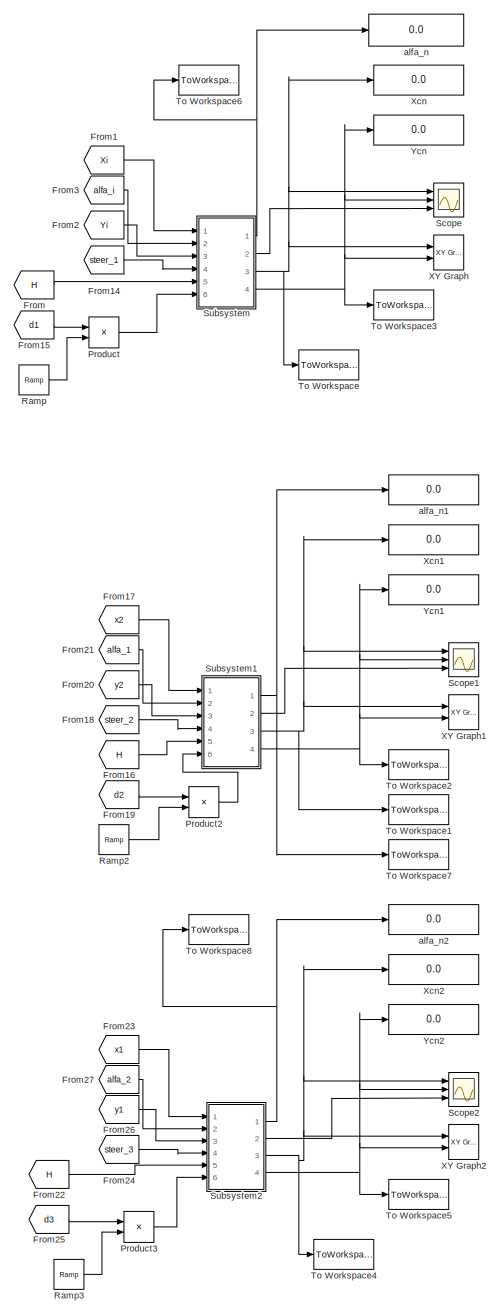
[diagram: root canvas - part 1/2, right side, full height]
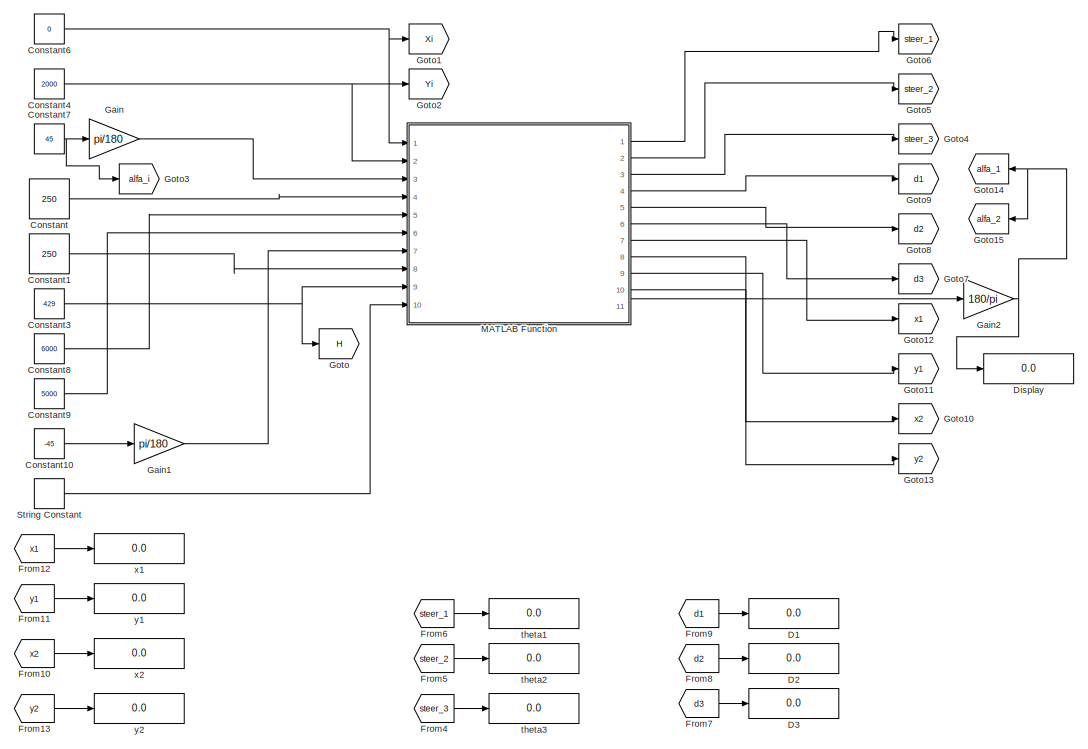
[diagram: root canvas - part 2/2, central region]
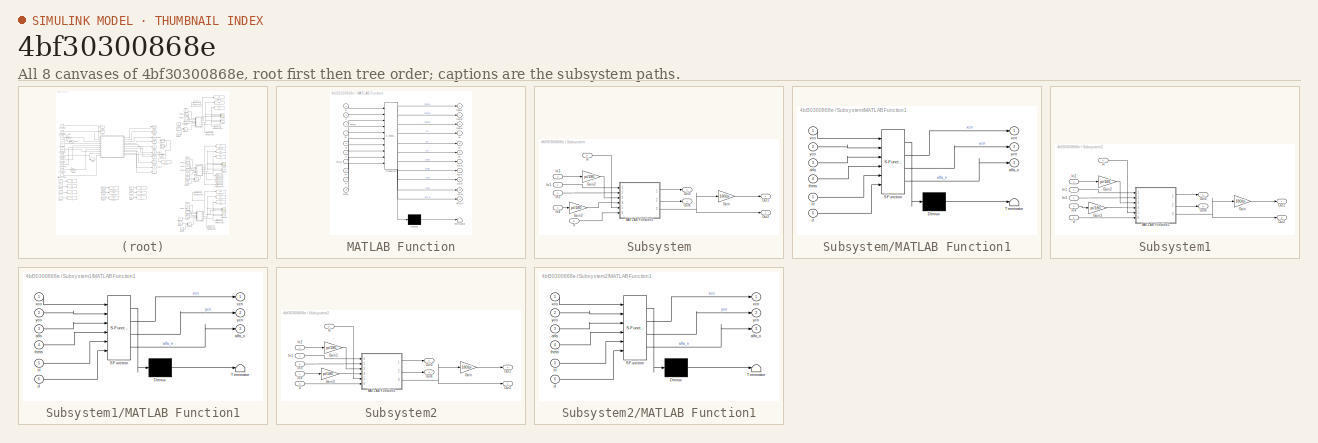
[diagram: thumbnail index - all 8 canvases of the model, root first then tree order]
MODEL slx_4bf30300868e
KIND model
CONFIG AbsTol = auto
CONFIG EnableMultiTasking = off
CONFIG FixedStep = 0.01
CONFIG MaxStep = auto
CONFIG MinStep = auto
CONFIG RelTol = 1e-3
CONFIG SampleTimeConstraint = Unconstrained
CONFIG SolverName = VariableStepAuto
CONFIG StartTime = 0.0
CONFIG StopTime = 1
BLOCK [Constant] Constant
  Value = 250
BLOCK [Constant] Constant1
  Value = 250
BLOCK [Constant] Constant10
  Value = -45
BLOCK [Constant] Constant3
  Value = 429
BLOCK [Constant] Constant4
  Value = 2000
BLOCK [Constant] Constant6
  Value = 0
BLOCK [Constant] Constant7
  Value = 45
BLOCK [Constant] Constant8
  Value = 6000
BLOCK [Constant] Constant9
  Value = 5000
BLOCK [Display] D1
  Decimation = 1
  Ports = [1]
BLOCK [Display] D2
  Decimation = 1
  Ports = [1]
BLOCK [Display] D3
  Decimation = 1
  Ports = [1]
BLOCK [Display] Display
  Decimation = 1
  Format = long
  Ports = [1]
BLOCK [From] From
  GotoTag = H
BLOCK [From] From1
  GotoTag = Xi
BLOCK [From] From10
  GotoTag = x2
BLOCK [From] From11
  GotoTag = y1
BLOCK [From] From12
  GotoTag = x1
BLOCK [From] From13
  GotoTag = y2
BLOCK [From] From14
  GotoTag = steer_1
BLOCK [From] From15
  GotoTag = d1
BLOCK [From] From16
  GotoTag = H
BLOCK [From] From17
  GotoTag = x2
BLOCK [From] From18
  GotoTag = steer_2
BLOCK [From] From19
  GotoTag = d2
BLOCK [From] From2
  GotoTag = Yi
BLOCK [From] From20
  GotoTag = y2
BLOCK [From] From21
  GotoTag = alfa_1
BLOCK [From] From22
  GotoTag = H
BLOCK [From] From23
  GotoTag = x1
BLOCK [From] From24
  GotoTag = steer_3
BLOCK [From] From25
  GotoTag = d3
BLOCK [From] From26
  GotoTag = y1
BLOCK [From] From27
  GotoTag = alfa_2
BLOCK [From] From3
  GotoTag = alfa_i
BLOCK [From] From4
  GotoTag = steer_3
BLOCK [From] From5
  GotoTag = steer_2
BLOCK [From] From6
  GotoTag = steer_1
BLOCK [From] From7
  GotoTag = d3
BLOCK [From] From8
  GotoTag = d2
BLOCK [From] From9
  GotoTag = d1
BLOCK [Gain] Gain
  Gain = pi/180
BLOCK [Gain] Gain1
  Gain = pi/180
BLOCK [Gain] Gain2
  Gain = 180/pi
BLOCK [Goto] Goto
  GotoTag = H
BLOCK [Goto] Goto1
  GotoTag = Xi
BLOCK [Goto] Goto10
  GotoTag = x2
BLOCK [Goto] Goto11
  GotoTag = y1
BLOCK [Goto] Goto12
  GotoTag = x1
BLOCK [Goto] Goto13
  GotoTag = y2
BLOCK [Goto] Goto14
  GotoTag = alfa_1
BLOCK [Goto] Goto15
  GotoTag = alfa_2
BLOCK [Goto] Goto2
  GotoTag = Yi
BLOCK [Goto] Goto3
  GotoTag = alfa_i
BLOCK [Goto] Goto4
  GotoTag = steer_3
BLOCK [Goto] Goto5
  GotoTag = steer_2
BLOCK [Goto] Goto6
  GotoTag = steer_1
BLOCK [Goto] Goto7
  GotoTag = d3
BLOCK [Goto] Goto8
  GotoTag = d2
BLOCK [Goto] Goto9
  GotoTag = d1
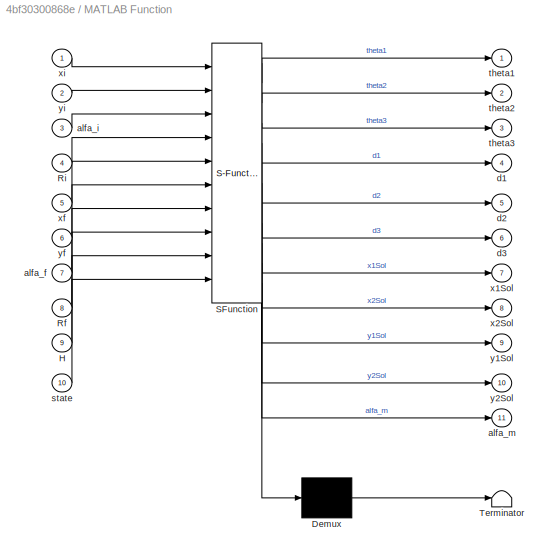
BLOCK [SubSystem] MATLAB Function
  ErrorFcn = Stateflow.Translate.translate
  PermitHierarchicalResolution = ExplicitOnly
  Ports = [10, 11]
  RequestExecContextInheritance = off
  SFBlockType = MATLAB Function
  TreatAsAtomicUnit = on
BLOCK [Demux] MATLAB Function/ Demux 
  Outputs = 1
  Ports = [1, 1]
BLOCK [S-Function] MATLAB Function/ SFunction 
  EnableBusSupport = on
  FunctionName = sf_sfun
  PortCounts = [10 12]
  Ports = [10, 12]
  SFcnIsStateOwnerBlock = off
  SFunctionDeploymentMode = off
  Tag = Stateflow S-Function 13
BLOCK [Terminator] MATLAB Function/ Terminator 
BLOCK [Inport] MATLAB Function/H
  Port = 9
BLOCK [Inport] MATLAB Function/Rf
  Port = 8
BLOCK [Inport] MATLAB Function/Ri
  Port = 4
BLOCK [Inport] MATLAB Function/alfa_f
  Port = 7
BLOCK [Inport] MATLAB Function/alfa_i
  Port = 3
BLOCK [Outport] MATLAB Function/alfa_m
  Port = 11
  VectorParamsAs1DForOutWhenUnconnected = off
BLOCK [Outport] MATLAB Function/d1
  Port = 4
  VectorParamsAs1DForOutWhenUnconnected = off
BLOCK [Outport] MATLAB Function/d2
  Port = 5
  VectorParamsAs1DForOutWhenUnconnected = off
BLOCK [Outport] MATLAB Function/d3
  Port = 6
  VectorParamsAs1DForOutWhenUnconnected = off
BLOCK [Inport] MATLAB Function/state
  Port = 10
BLOCK [Outport] MATLAB Function/theta1
  VectorParamsAs1DForOutWhenUnconnected = off
BLOCK [Outport] MATLAB Function/theta2
  Port = 2
  VectorParamsAs1DForOutWhenUnconnected = off
BLOCK [Outport] MATLAB Function/theta3
  Port = 3
  VectorParamsAs1DForOutWhenUnconnected = off
BLOCK [Outport] MATLAB Function/x1Sol
  Port = 7
  VectorParamsAs1DForOutWhenUnconnected = off
BLOCK [Outport] MATLAB Function/x2Sol
  Port = 8
  VectorParamsAs1DForOutWhenUnconnected = off
BLOCK [Inport] MATLAB Function/xf
  Port = 5
BLOCK [Inport] MATLAB Function/xi
BLOCK [Outport] MATLAB Function/y1Sol
  Port = 9
  VectorParamsAs1DForOutWhenUnconnected = off
BLOCK [Outport] MATLAB Function/y2Sol
  Port = 10
  VectorParamsAs1DForOutWhenUnconnected = off
BLOCK [Inport] MATLAB Function/yf
  Port = 6
BLOCK [Inport] MATLAB Function/yi
  Port = 2
BLOCK [Product] Product
  Ports = [2, 1]
BLOCK [Product] Product2
  Ports = [2, 1]
BLOCK [Product] Product3
  Ports = [2, 1]
BLOCK [Reference] Ramp  REF=simulink/Sources/Ramp
  Ports = [0, 1]
  SourceBlock = simulink/Sources/Ramp
  SourceProductBaseCode = SL
  SourceType = Ramp
BLOCK [Reference] Ramp2  REF=simulink/Sources/Ramp
  Ports = [0, 1]
  SourceBlock = simulink/Sources/Ramp
  SourceProductBaseCode = SL
  SourceType = Ramp
BLOCK [Reference] Ramp3  REF=simulink/Sources/Ramp
  Ports = [0, 1]
  SourceBlock = simulink/Sources/Ramp
  SourceProductBaseCode = SL
  SourceType = Ramp
BLOCK [Scope] Scope
  Floating = off
  NumInputPorts = 3
  Ports = [3]
  ScopeSpecificationString = Simulink.scopes.TimeScopeBlockCfg('CurrentConfiguration', extmgr.ConfigurationSet(extmgr.Configuration('Core','General UI',true),extmgr.Configuration('Core','Source UI',true),extmgr.Configuration('Sources','WiredSimulink',true),extmgr.Configuration('Visuals','Time Domain',true,'SerializedDisplays',{struct('MinYLimReal','-0.0000003','MaxYLimReal','0.0000029','YLabelReal','','MinYLimMag','0.0000000'...<+2746ch>
BLOCK [Scope] Scope1
  Floating = off
  NumInputPorts = 3
  Ports = [3]
  ScopeSpecificationString = Simulink.scopes.TimeScopeBlockCfg('CurrentConfiguration', extmgr.ConfigurationSet(extmgr.Configuration('Core','General UI',true),extmgr.Configuration('Core','Source UI',true),extmgr.Configuration('Sources','WiredSimulink',true,'DataLoggingVariableName','ScopeData1'),extmgr.Configuration('Visuals','Time Domain',true,'SerializedDisplays',{struct('MinYLimReal','-5911.68253','MaxYLimReal','656.85361',...<+2794ch>
BLOCK [Scope] Scope2
  Floating = off
  NumInputPorts = 3
  Ports = [3]
  ScopeSpecificationString = Simulink.scopes.TimeScopeBlockCfg('CurrentConfiguration', extmgr.ConfigurationSet(extmgr.Configuration('Core','General UI',true),extmgr.Configuration('Core','Source UI',true),extmgr.Configuration('Sources','WiredSimulink',true,'DataLoggingVariableName','ScopeData2'),extmgr.Configuration('Visuals','Time Domain',true,'SerializedDisplays',{struct('MinYLimReal','-112.50441','MaxYLimReal','12.50049','Y...<+2799ch>
BLOCK [StringConstant] String Constant
  String = "F"
BLOCK [SubSystem] Subsystem
  Ports = [6, 4]
  RequestExecContextInheritance = off
BLOCK [Gain] Subsystem/Gain
  Gain = 180/pi
BLOCK [Gain] Subsystem/Gain2
  Gain = pi/180
BLOCK [Gain] Subsystem/Gain3
  Gain = pi/180
BLOCK [Inport] Subsystem/H
  Port = 5
BLOCK [Inport] Subsystem/In1
BLOCK [Inport] Subsystem/In2
  Port = 2
BLOCK [Inport] Subsystem/In3
  Port = 3
BLOCK [Inport] Subsystem/In4
  Port = 4
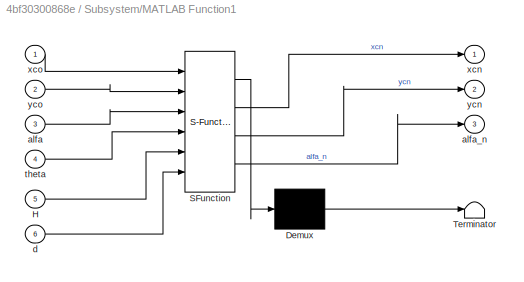
BLOCK [SubSystem] Subsystem/MATLAB Function1
  ErrorFcn = Stateflow.Translate.translate
  PermitHierarchicalResolution = ExplicitOnly
  Ports = [6, 3]
  RequestExecContextInheritance = off
  SFBlockType = MATLAB Function
  TreatAsAtomicUnit = on
BLOCK [Demux] Subsystem/MATLAB Function1/ Demux 
  Outputs = 1
  Ports = [1, 1]
BLOCK [S-Function] Subsystem/MATLAB Function1/ SFunction 
  EnableBusSupport = on
  FunctionName = sf_sfun
  PortCounts = [6 4]
  Ports = [6, 4]
  SFcnIsStateOwnerBlock = off
  SFunctionDeploymentMode = off
  Tag = Stateflow S-Function 1
BLOCK [Terminator] Subsystem/MATLAB Function1/ Terminator 
BLOCK [Inport] Subsystem/MATLAB Function1/H
  Port = 5
BLOCK [Inport] Subsystem/MATLAB Function1/alfa
  Port = 3
BLOCK [Outport] Subsystem/MATLAB Function1/alfa_n
  Port = 3
  VectorParamsAs1DForOutWhenUnconnected = off
BLOCK [Inport] Subsystem/MATLAB Function1/d
  Port = 6
BLOCK [Inport] Subsystem/MATLAB Function1/theta
  Port = 4
BLOCK [Outport] Subsystem/MATLAB Function1/xcn
  VectorParamsAs1DForOutWhenUnconnected = off
BLOCK [Inport] Subsystem/MATLAB Function1/xco
BLOCK [Outport] Subsystem/MATLAB Function1/ycn
  Port = 2
  VectorParamsAs1DForOutWhenUnconnected = off
BLOCK [Inport] Subsystem/MATLAB Function1/yco
  Port = 2
BLOCK [Outport] Subsystem/Out1
  VectorParamsAs1DForOutWhenUnconnected = off
BLOCK [Outport] Subsystem/Out2
  Port = 2
  VectorParamsAs1DForOutWhenUnconnected = off
BLOCK [Outport] Subsystem/Out3
  Port = 3
  VectorParamsAs1DForOutWhenUnconnected = off
BLOCK [Outport] Subsystem/Out4
  Port = 4
  VectorParamsAs1DForOutWhenUnconnected = off
BLOCK [Inport] Subsystem/d
  Port = 6
BLOCK [SubSystem] Subsystem1
  Ports = [6, 4]
  RequestExecContextInheritance = off
BLOCK [Gain] Subsystem1/Gain
  Gain = 180/pi
BLOCK [Gain] Subsystem1/Gain2
  Gain = pi/180
BLOCK [Gain] Subsystem1/Gain3
  Gain = pi/180
BLOCK [Inport] Subsystem1/H
  Port = 5
BLOCK [Inport] Subsystem1/In1
BLOCK [Inport] Subsystem1/In2
  Port = 2
BLOCK [Inport] Subsystem1/In3
  Port = 3
BLOCK [Inport] Subsystem1/In4
  Port = 4
BLOCK [SubSystem] Subsystem1/MATLAB Function1
  ErrorFcn = Stateflow.Translate.translate
  PermitHierarchicalResolution = ExplicitOnly
  Ports = [6, 3]
  RequestExecContextInheritance = off
  SFBlockType = MATLAB Function
  TreatAsAtomicUnit = on
BLOCK [Demux] Subsystem1/MATLAB Function1/ Demux 
  Outputs = 1
  Ports = [1, 1]
BLOCK [S-Function] Subsystem1/MATLAB Function1/ SFunction 
  EnableBusSupport = on
  FunctionName = sf_sfun
  PortCounts = [6 4]
  Ports = [6, 4]
  SFcnIsStateOwnerBlock = off
  SFunctionDeploymentMode = off
  Tag = Stateflow S-Function 2
BLOCK [Terminator] Subsystem1/MATLAB Function1/ Terminator 
BLOCK [Inport] Subsystem1/MATLAB Function1/H
  Port = 5
BLOCK [Inport] Subsystem1/MATLAB Function1/alfa
  Port = 3
BLOCK [Outport] Subsystem1/MATLAB Function1/alfa_n
  Port = 3
  VectorParamsAs1DForOutWhenUnconnected = off
BLOCK [Inport] Subsystem1/MATLAB Function1/d
  Port = 6
BLOCK [Inport] Subsystem1/MATLAB Function1/theta
  Port = 4
BLOCK [Outport] Subsystem1/MATLAB Function1/xcn
  VectorParamsAs1DForOutWhenUnconnected = off
BLOCK [Inport] Subsystem1/MATLAB Function1/xco
BLOCK [Outport] Subsystem1/MATLAB Function1/ycn
  Port = 2
  VectorParamsAs1DForOutWhenUnconnected = off
BLOCK [Inport] Subsystem1/MATLAB Function1/yco
  Port = 2
BLOCK [Outport] Subsystem1/Out1
  VectorParamsAs1DForOutWhenUnconnected = off
BLOCK [Outport] Subsystem1/Out2
  Port = 2
  VectorParamsAs1DForOutWhenUnconnected = off
BLOCK [Outport] Subsystem1/Out3
  Port = 3
  VectorParamsAs1DForOutWhenUnconnected = off
BLOCK [Outport] Subsystem1/Out4
  Port = 4
  VectorParamsAs1DForOutWhenUnconnected = off
BLOCK [Inport] Subsystem1/d
  Port = 6
BLOCK [SubSystem] Subsystem2
  Ports = [6, 4]
  RequestExecContextInheritance = off
BLOCK [Gain] Subsystem2/Gain
  Gain = 180/pi
BLOCK [Gain] Subsystem2/Gain2
  Gain = pi/180
BLOCK [Gain] Subsystem2/Gain3
  Gain = pi/180
BLOCK [Inport] Subsystem2/H
  Port = 5
BLOCK [Inport] Subsystem2/In1
BLOCK [Inport] Subsystem2/In2
  Port = 2
BLOCK [Inport] Subsystem2/In3
  Port = 3
BLOCK [Inport] Subsystem2/In4
  Port = 4
BLOCK [SubSystem] Subsystem2/MATLAB Function1
  ErrorFcn = Stateflow.Translate.translate
  PermitHierarchicalResolution = ExplicitOnly
  Ports = [6, 3]
  RequestExecContextInheritance = off
  SFBlockType = MATLAB Function
  TreatAsAtomicUnit = on
BLOCK [Demux] Subsystem2/MATLAB Function1/ Demux 
  Outputs = 1
  Ports = [1, 1]
BLOCK [S-Function] Subsystem2/MATLAB Function1/ SFunction 
  EnableBusSupport = on
  FunctionName = sf_sfun
  PortCounts = [6 4]
  Ports = [6, 4]
  SFcnIsStateOwnerBlock = off
  SFunctionDeploymentMode = off
  Tag = Stateflow S-Function 10
BLOCK [Terminator] Subsystem2/MATLAB Function1/ Terminator 
BLOCK [Inport] Subsystem2/MATLAB Function1/H
  Port = 5
BLOCK [Inport] Subsystem2/MATLAB Function1/alfa
  Port = 3
BLOCK [Outport] Subsystem2/MATLAB Function1/alfa_n
  Port = 3
  VectorParamsAs1DForOutWhenUnconnected = off
BLOCK [Inport] Subsystem2/MATLAB Function1/d
  Port = 6
BLOCK [Inport] Subsystem2/MATLAB Function1/theta
  Port = 4
BLOCK [Outport] Subsystem2/MATLAB Function1/xcn
  VectorParamsAs1DForOutWhenUnconnected = off
BLOCK [Inport] Subsystem2/MATLAB Function1/xco
BLOCK [Outport] Subsystem2/MATLAB Function1/ycn
  Port = 2
  VectorParamsAs1DForOutWhenUnconnected = off
BLOCK [Inport] Subsystem2/MATLAB Function1/yco
  Port = 2
BLOCK [Outport] Subsystem2/Out1
  VectorParamsAs1DForOutWhenUnconnected = off
BLOCK [Outport] Subsystem2/Out2
  Port = 2
  VectorParamsAs1DForOutWhenUnconnected = off
BLOCK [Outport] Subsystem2/Out3
  Port = 3
  VectorParamsAs1DForOutWhenUnconnected = off
BLOCK [Outport] Subsystem2/Out4
  Port = 4
  VectorParamsAs1DForOutWhenUnconnected = off
BLOCK [Inport] Subsystem2/d
  Port = 6
BLOCK [ToWorkspace] To Workspace
  Decimation = 2
  FixptAsFi = on
  MaxDataPoints = inf
  Ports = [1]
  SampleTime = 0.05
  VariableName = X1
BLOCK [ToWorkspace] To Workspace1
  Decimation = 2
  FixptAsFi = on
  MaxDataPoints = inf
  Ports = [1]
  SampleTime = 0.05
  VariableName = X2
BLOCK [ToWorkspace] To Workspace2
  Decimation = 2
  FixptAsFi = on
  MaxDataPoints = inf
  Ports = [1]
  SampleTime = 0.05
  VariableName = Y2
BLOCK [ToWorkspace] To Workspace3
  Decimation = 2
  FixptAsFi = on
  MaxDataPoints = inf
  Ports = [1]
  SampleTime = 0.05
  VariableName = Y1
BLOCK [ToWorkspace] To Workspace4
  Decimation = 2
  FixptAsFi = on
  MaxDataPoints = inf
  Ports = [1]
  SampleTime = 0.05
  VariableName = X3
BLOCK [ToWorkspace] To Workspace5
  Decimation = 2
  FixptAsFi = on
  MaxDataPoints = inf
  Ports = [1]
  SampleTime = 0.05
  VariableName = Y3
BLOCK [ToWorkspace] To Workspace6
  Decimation = 2
  FixptAsFi = on
  MaxDataPoints = inf
  Ports = [1]
  SampleTime = 0.05
  VariableName = alfa1
BLOCK [ToWorkspace] To Workspace7
  Decimation = 2
  FixptAsFi = on
  MaxDataPoints = inf
  Ports = [1]
  SampleTime = 0.05
  VariableName = alfa2
BLOCK [ToWorkspace] To Workspace8
  Decimation = 2
  FixptAsFi = on
  MaxDataPoints = inf
  Ports = [1]
  SampleTime = 0.05
  VariableName = alfa3
BLOCK [Reference] XY Graph  REF=simulink/Sinks/XY Graph
  Ports = [2]
  SourceBlock = simulink/Sinks/XY Graph
  SourceProductBaseCode = SL
  SourceType = XY scope.
BLOCK [Reference] XY Graph1  REF=simulink/Sinks/XY Graph
  Ports = [2]
  SourceBlock = simulink/Sinks/XY Graph
  SourceProductBaseCode = SL
  SourceType = XY scope.
BLOCK [Reference] XY Graph2  REF=simulink/Sinks/XY Graph
  Ports = [2]
  SourceBlock = simulink/Sinks/XY Graph
  SourceProductBaseCode = SL
  SourceType = XY scope.
BLOCK [Display] Xcn
  Decimation = 1
  Ports = [1]
BLOCK [Display] Xcn1
  Decimation = 1
  Ports = [1]
BLOCK [Display] Xcn2
  Decimation = 1
  Ports = [1]
BLOCK [Display] Ycn
  Decimation = 1
  Ports = [1]
BLOCK [Display] Ycn1
  Decimation = 1
  Ports = [1]
BLOCK [Display] Ycn2
  Decimation = 1
  Ports = [1]
BLOCK [Display] alfa_n
  Decimation = 1
  Format = long
  Ports = [1]
BLOCK [Display] alfa_n1
  Decimation = 1
  Ports = [1]
BLOCK [Display] alfa_n2
  Decimation = 1
  Ports = [1]
BLOCK [Display] theta1
  Decimation = 1
  Ports = [1]
BLOCK [Display] theta2
  Decimation = 1
  Ports = [1]
BLOCK [Display] theta3
  Decimation = 1
  Ports = [1]
BLOCK [Display] x1
  Decimation = 4
  Ports = [1]
BLOCK [Display] x2
  Decimation = 1
  Ports = [1]
BLOCK [Display] y1
  Decimation = 4
  Ports = [1]
BLOCK [Display] y2
  Decimation = 1
  Ports = [1]
LINE Constant10:1 -> Gain1:1
LINE Constant1:1 -> MATLAB Function:8
NET Constant3:1 -> Goto:1, MATLAB Function:9
NET Constant4:1 -> Goto2:1, MATLAB Function:2
NET Constant6:1 -> Goto1:1, MATLAB Function:1
NET Constant7:1 -> Gain:1, Goto3:1
LINE Constant8:1 -> MATLAB Function:5
LINE Constant9:1 -> MATLAB Function:6
LINE Constant:1 -> MATLAB Function:4
LINE From10:1 -> x2:1
LINE From11:1 -> y1:1
LINE From12:1 -> x1:1
LINE From13:1 -> y2:1
LINE From14:1 -> Subsystem:4
LINE From15:1 -> Product:1
LINE From16:1 -> Subsystem1:5
LINE From17:1 -> Subsystem1:1
LINE From18:1 -> Subsystem1:4
LINE From19:1 -> Product2:1
LINE From1:1 -> Subsystem:1
LINE From20:1 -> Subsystem1:3
LINE From21:1 -> Subsystem1:2
LINE From22:1 -> Subsystem2:5
LINE From23:1 -> Subsystem2:1
LINE From24:1 -> Subsystem2:4
LINE From25:1 -> Product3:1
LINE From26:1 -> Subsystem2:3
LINE From27:1 -> Subsystem2:2
LINE From2:1 -> Subsystem:3
LINE From3:1 -> Subsystem:2
LINE From4:1 -> theta3:1
LINE From5:1 -> theta2:1
LINE From6:1 -> theta1:1
LINE From7:1 -> D3:1
LINE From8:1 -> D2:1
LINE From9:1 -> D1:1
LINE From:1 -> Subsystem:5
LINE Gain1:1 -> MATLAB Function:7
NET Gain2:1 -> Display:1, Goto14:1, Goto15:1
LINE Gain:1 -> MATLAB Function:3
LINE MATLAB Function:1 -> Goto6:1
LINE MATLAB Function:10 -> Goto13:1
LINE MATLAB Function:11 -> Gain2:1
LINE MATLAB Function:2 -> Goto5:1
LINE MATLAB Function:3 -> Goto4:1
LINE MATLAB Function:4 -> Goto9:1
LINE MATLAB Function:5 -> Goto8:1
LINE MATLAB Function:6 -> Goto7:1
LINE MATLAB Function:7 -> Goto12:1
LINE MATLAB Function:8 -> Goto10:1
LINE MATLAB Function:9 -> Goto11:1
LINE Product2:1 -> Subsystem1:6
LINE Product3:1 -> Subsystem2:6
LINE Product:1 -> Subsystem:6
LINE Ramp2:1 -> Product2:2
LINE Ramp3:1 -> Product3:2
LINE Ramp:1 -> Product:2
LINE String Constant:1 -> MATLAB Function:10
LINE Subsystem/Gain2:1 -> Subsystem/MATLAB Function1:3
LINE Subsystem/Gain3:1 -> Subsystem/MATLAB Function1:4
LINE Subsystem/Gain:1 -> Subsystem/Out1:1
LINE Subsystem/H:1 -> Subsystem/MATLAB Function1:5
LINE Subsystem/In1:1 -> Subsystem/MATLAB Function1:1
LINE Subsystem/In2:1 -> Subsystem/Gain2:1
LINE Subsystem/In3:1 -> Subsystem/MATLAB Function1:2
LINE Subsystem/In4:1 -> Subsystem/Gain3:1
LINE Subsystem/MATLAB Function1:1 -> Subsystem/Out3:1
LINE Subsystem/MATLAB Function1:2 -> Subsystem/Out4:1
NET Subsystem/MATLAB Function1:3 -> Subsystem/Gain:1, Subsystem/Out2:1
LINE Subsystem/d:1 -> Subsystem/MATLAB Function1:6
LINE Subsystem1/Gain2:1 -> Subsystem1/MATLAB Function1:3
LINE Subsystem1/Gain3:1 -> Subsystem1/MATLAB Function1:4
LINE Subsystem1/Gain:1 -> Subsystem1/Out1:1
LINE Subsystem1/H:1 -> Subsystem1/MATLAB Function1:5
LINE Subsystem1/In1:1 -> Subsystem1/MATLAB Function1:1
LINE Subsystem1/In2:1 -> Subsystem1/Gain2:1
LINE Subsystem1/In3:1 -> Subsystem1/MATLAB Function1:2
LINE Subsystem1/In4:1 -> Subsystem1/Gain3:1
LINE Subsystem1/MATLAB Function1:1 -> Subsystem1/Out3:1
LINE Subsystem1/MATLAB Function1:2 -> Subsystem1/Out4:1
NET Subsystem1/MATLAB Function1:3 -> Subsystem1/Gain:1, Subsystem1/Out2:1
LINE Subsystem1/d:1 -> Subsystem1/MATLAB Function1:6
NET Subsystem1:1 -> To Workspace7:1, alfa_n1:1
LINE Subsystem1:2 -> Scope1:3
NET Subsystem1:3 -> Scope1:1, To Workspace1:1, XY Graph1:1, Xcn1:1
NET Subsystem1:4 -> Scope1:2, To Workspace2:1, XY Graph1:2, Ycn1:1
LINE Subsystem2/Gain2:1 -> Subsystem2/MATLAB Function1:3
LINE Subsystem2/Gain3:1 -> Subsystem2/MATLAB Function1:4
LINE Subsystem2/Gain:1 -> Subsystem2/Out1:1
LINE Subsystem2/H:1 -> Subsystem2/MATLAB Function1:5
LINE Subsystem2/In1:1 -> Subsystem2/MATLAB Function1:1
LINE Subsystem2/In2:1 -> Subsystem2/Gain2:1
LINE Subsystem2/In3:1 -> Subsystem2/MATLAB Function1:2
LINE Subsystem2/In4:1 -> Subsystem2/Gain3:1
LINE Subsystem2/MATLAB Function1:1 -> Subsystem2/Out3:1
LINE Subsystem2/MATLAB Function1:2 -> Subsystem2/Out4:1
NET Subsystem2/MATLAB Function1:3 -> Subsystem2/Gain:1, Subsystem2/Out2:1
LINE Subsystem2/d:1 -> Subsystem2/MATLAB Function1:6
NET Subsystem2:1 -> To Workspace8:1, alfa_n2:1
LINE Subsystem2:2 -> Scope2:3
NET Subsystem2:3 -> Scope2:1, To Workspace4:1, XY Graph2:1, Xcn2:1
NET Subsystem2:4 -> Scope2:2, To Workspace5:1, XY Graph2:2, Ycn2:1
NET Subsystem:1 -> To Workspace6:1, alfa_n:1
LINE Subsystem:2 -> Scope:3
NET Subsystem:3 -> Scope:1, To Workspace:1, XY Graph:1, Xcn:1
NET Subsystem:4 -> Scope:2, To Workspace3:1, XY Graph:2, Ycn:1
note: NET lines group one-source signal fan-out (src -> all destinations, sorted); 1:1 wires keep LINE
CHART Subsystem/MATLAB Function1 states=1 transitions=1
  STATE_LABEL 'eML_blk_kernel()'
  STATE_LABEL 'SCRIPT:\nfunction [xcn,ycn,alfa_n] = fcn(xco,yco,alfa,theta,H,d)\nL=-H/cos((pi/2)-theta);\nbeta = d/L;\nR = H *tan((pi/2)-theta);\ngama = (((pi-beta)/2)-(alfa-pi/2));\nalfa_n =(pi/2)+((alfa-pi/2)+beta) ;\nxcn=xco+2*R*sin(beta/2)*cos(gama);\nycn=yco-2*R*sin(beta/2)*sin(gama);'  <repeated x3 — deduplicated; at blocks: MATLAB Function1>
CHART Subsystem1/MATLAB Function1 states=1 transitions=1
  STATE_LABEL 'eML_blk_kernel()'
CHART Subsystem2/MATLAB Function1 states=1 transitions=1
  STATE_LABEL 'eML_blk_kernel()'
CHART MATLAB Function states=1 transitions=1
  STATE_LABEL 'eML_blk_kernel()'
  STATE_LABEL 'SCRIPT:\nfunction [theta1,theta2,theta3,d1,d2,d3,x1Sol,x2Sol,y1Sol,y2Sol,alfa_m] = fcn(xi,yi,alfa_i,Ri,xf,yf,alfa_f,Rf,H,state)\n%H=200;\n%Ri=500;Rf=500;\n%xi=5000; yi=5000; alfa_i=90*pi/180;\n%xf=0; yf=0; alfa_f=0*pi/180;state="F";\nxc1=0;\nyc1=0;\nxc2=0;\nyc2=0;\nif state=="F"\n xc1=xf+Rf*sin(alfa_f-1e-10);\n yc1=yf-Rf*cos(alfa_f-1e-10);\n xc2=xi+Ri*sin(alfa_i-1e-10);\n yc2=yi-Ri*cos(alfa_i-1e-10);\nelseif sta...<+3608ch>'
CHART  states=0 transitions=0
CHART  states=0 transitions=0
CHART  states=0 transitions=0
CHART  states=0 transitions=0
